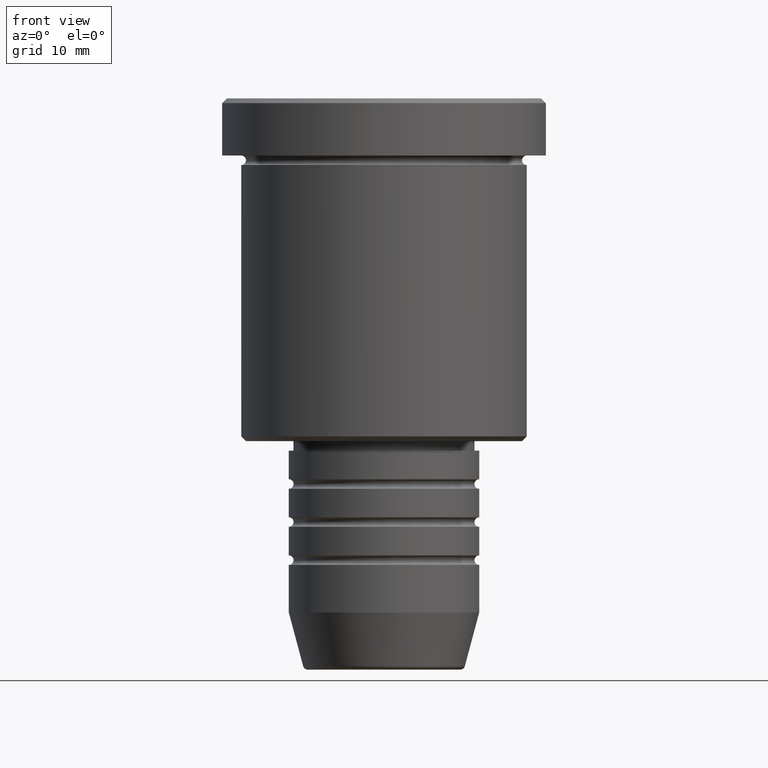
[diagram: clean part render]
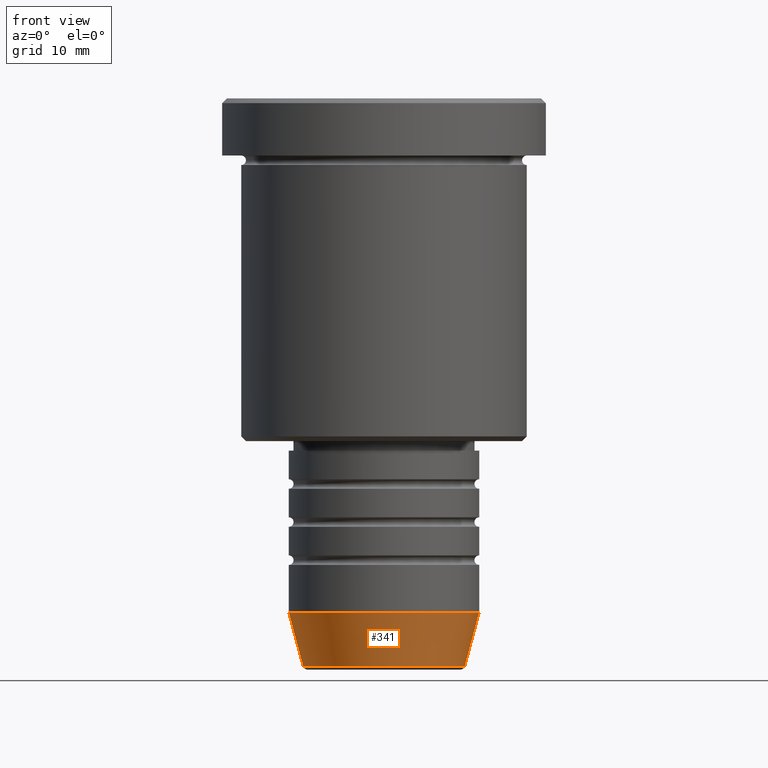
[diagram: same view with one face highlighted and labeled with its STEP entity id]
A machine part, front view. The second image highlights one B-rep face of the part: STEP entity #341.
In plain terms, the highlighted conical surface has half-angle 15 deg.
Its self-contained STEP definition (entity closure, byte-faithful):
#12 = DIRECTION ( 'NONE',  ( -0.000000000000000000, -0.000000000000000000, 1.000000000000000000 ) ) ;
#18 = ORIENTED_EDGE ( 'NONE', *, *, #270, .T. ) ;
#20 = DIRECTION ( 'NONE',  ( -0.000000000000000000, -0.000000000000000000, 1.000000000000000000 ) ) ;
#64 = CARTESIAN_POINT ( 'NONE',  ( 10.00000000000000178, 0.000000000000000000, -54.00000000000000000 ) ) ;
#106 = DIRECTION ( 'NONE',  ( 1.000000000000000000, 0.000000000000000000, 0.000000000000000000 ) ) ;
#183 = DIRECTION ( 'NONE',  ( 1.000000000000000000, 0.000000000000000000, 0.000000000000000000 ) ) ;
#201 = VECTOR ( 'NONE', #1063, 1000.000000000000114 ) ;
#239 = LINE ( 'NONE', #321, #201 ) ;
#270 = EDGE_CURVE ( 'NONE', #774, #1100, #711, .T. ) ;
#321 = CARTESIAN_POINT ( 'NONE',  ( -10.00000000000000178, 1.224646799147353454E-15, -54.00000000000000000 ) ) ;
#341 = ADVANCED_FACE ( 'NONE', ( #1088 ), #366, .T. ) ;
#362 = CARTESIAN_POINT ( 'NONE',  ( 8.491604264568314520, 0.000000000000000000, -59.62940952255126348 ) ) ;
#366 = CONICAL_SURFACE ( 'NONE', #920, 10.00000000000000178, 0.2617993877991502960 ) ;
#382 = CARTESIAN_POINT ( 'NONE',  ( 10.00000000000000178, 0.000000000000000000, -54.00000000000000000 ) ) ;
#408 = ORIENTED_EDGE ( 'NONE', *, *, #520, .F. ) ;
#435 = DIRECTION ( 'NONE',  ( -0.000000000000000000, -0.000000000000000000, 1.000000000000000000 ) ) ;
#513 = AXIS2_PLACEMENT_3D ( 'NONE', #738, #435, #807 ) ;
#520 = EDGE_CURVE ( 'NONE', #774, #707, #239, .T. ) ;
#661 = AXIS2_PLACEMENT_3D ( 'NONE', #1129, #20, #106 ) ;
#707 = VERTEX_POINT ( 'NONE', #1001 ) ;
#711 = CIRCLE ( 'NONE', #513, 8.491604264568314520 ) ;
#738 = CARTESIAN_POINT ( 'NONE',  ( 0.000000000000000000, 0.000000000000000000, -59.62940952255126348 ) ) ;
#774 = VERTEX_POINT ( 'NONE', #911 ) ;
#805 = DIRECTION ( 'NONE',  ( 0.2588190451025216277, 0.000000000000000000, 0.9659258262890679791 ) ) ;
#807 = DIRECTION ( 'NONE',  ( 1.000000000000000000, 0.000000000000000000, 0.000000000000000000 ) ) ;
#866 = EDGE_LOOP ( 'NONE', ( #408, #18, #1132, #933 ) ) ;
#881 = VERTEX_POINT ( 'NONE', #382 ) ;
#911 = CARTESIAN_POINT ( 'NONE',  ( -8.491604264568314520, 1.132284198685156781E-15, -59.62940952255126348 ) ) ;
#920 = AXIS2_PLACEMENT_3D ( 'NONE', #1077, #12, #183 ) ;
#933 = ORIENTED_EDGE ( 'NONE', *, *, #1119, .F. ) ;
#1001 = CARTESIAN_POINT ( 'NONE',  ( -10.00000000000000178, 1.224646799147353454E-15, -54.00000000000000000 ) ) ;
#1026 = LINE ( 'NONE', #64, #1073 ) ;
#1050 = EDGE_CURVE ( 'NONE', #1100, #881, #1026, .T. ) ;
#1063 = DIRECTION ( 'NONE',  ( -0.2588190451025216277, 3.169619151431776035E-17, 0.9659258262890679791 ) ) ;
#1073 = VECTOR ( 'NONE', #805, 1000.000000000000114 ) ;
#1077 = CARTESIAN_POINT ( 'NONE',  ( 0.000000000000000000, 0.000000000000000000, -54.00000000000000000 ) ) ;
#1088 = FACE_OUTER_BOUND ( 'NONE', #866, .T. ) ;
#1100 = VERTEX_POINT ( 'NONE', #362 ) ;
#1108 = CIRCLE ( 'NONE', #661, 10.00000000000000178 ) ;
#1119 = EDGE_CURVE ( 'NONE', #707, #881, #1108, .T. ) ;
#1129 = CARTESIAN_POINT ( 'NONE',  ( 0.000000000000000000, 0.000000000000000000, -54.00000000000000000 ) ) ;
#1132 = ORIENTED_EDGE ( 'NONE', *, *, #1050, .T. ) ;